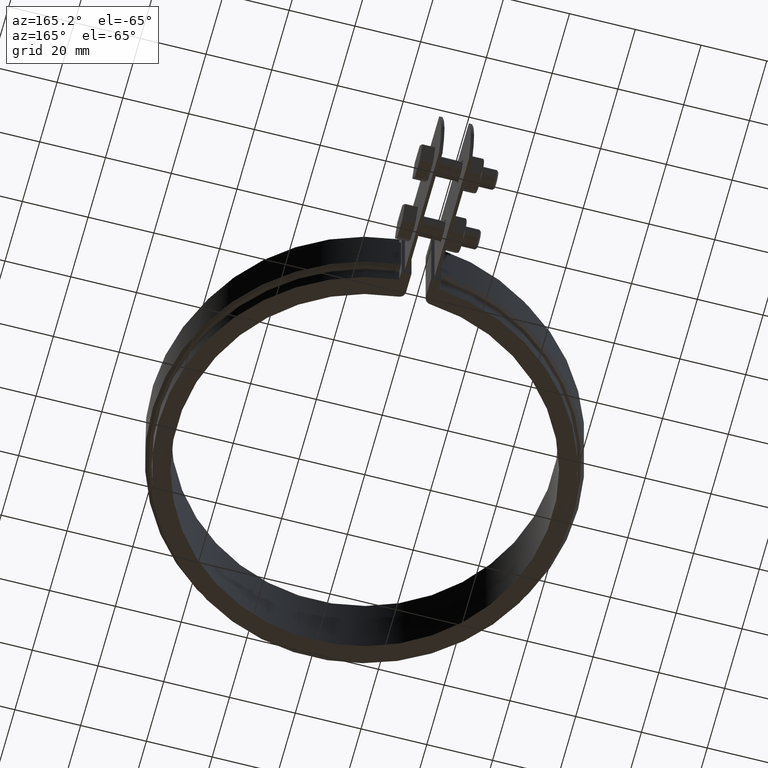
[diagram: clean part render]
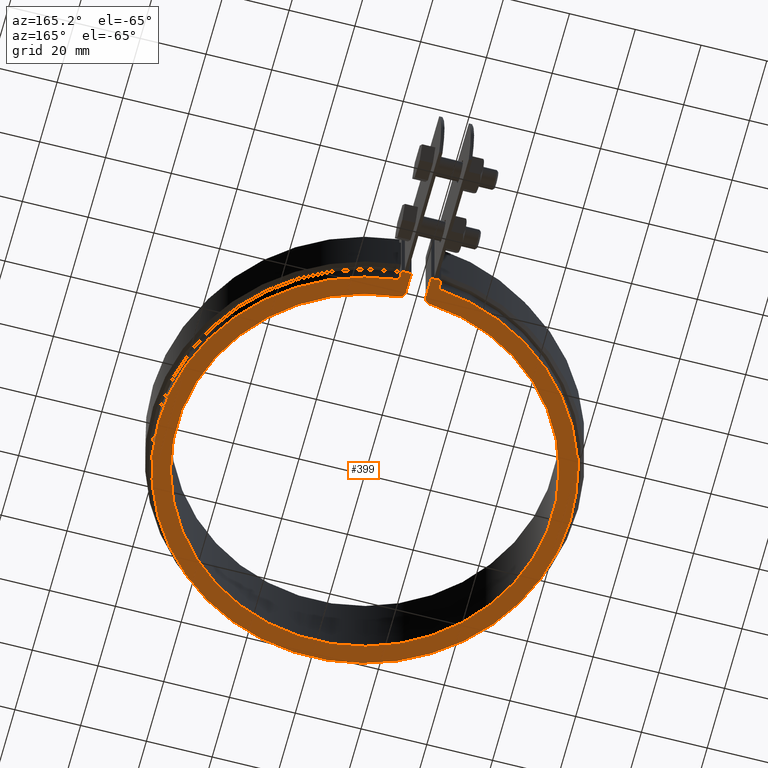
[diagram: same view with one face highlighted and labeled with its STEP entity id]
A machine part, auxiliary view. The second image highlights one B-rep face of the part: STEP entity #399.
In plain terms, the highlighted planar face has unit normal (0, 0, -1).
Its self-contained STEP definition (entity closure, byte-faithful):
#399 = ADVANCED_FACE( '', ( #690 ), #691, .T. );
#690 = FACE_OUTER_BOUND( '', #1542, .T. );
#691 = PLANE( '', #1543 );
#1542 = EDGE_LOOP( '', ( #3064, #3065, #3066, #3067, #3068, #3069, #3070, #3071, #3072, #3073 ) );
#1543 = AXIS2_PLACEMENT_3D( '', #3074, #3075, #3076 );
#3064 = ORIENTED_EDGE( '', *, *, #4115, .F. );
#3065 = ORIENTED_EDGE( '', *, *, #4112, .F. );
#3066 = ORIENTED_EDGE( '', *, *, #4094, .F. );
#3067 = ORIENTED_EDGE( '', *, *, #4069, .F. );
#3068 = ORIENTED_EDGE( '', *, *, #4090, .F. );
#3069 = ORIENTED_EDGE( '', *, *, #4109, .F. );
#3070 = ORIENTED_EDGE( '', *, *, #4116, .F. );
#3071 = ORIENTED_EDGE( '', *, *, #4117, .F. );
#3072 = ORIENTED_EDGE( '', *, *, #4118, .F. );
#3073 = ORIENTED_EDGE( '', *, *, #4015, .F. );
#3074 = CARTESIAN_POINT( '', ( 5.23468562216772, 60.8144995942392, -14.0000000000000 ) );
#3075 = DIRECTION( '', ( 0.000000000000000, 0.000000000000000, -1.00000000000000 ) );
#3076 = DIRECTION( '', ( 0.112630732099760, 0.993636914665851, 0.000000000000000 ) );
#4015 = EDGE_CURVE( '', #4629, #4631, #4632, .T. );
#4069 = EDGE_CURVE( '', #4720, #4691, #4722, .T. );
#4090 = EDGE_CURVE( '', #4755, #4720, #4757, .T. );
#4094 = EDGE_CURVE( '', #4691, #4764, #4765, .T. );
#4109 = EDGE_CURVE( '', #4785, #4755, #4787, .T. );
#4112 = EDGE_CURVE( '', #4764, #4788, #4792, .T. );
#4115 = EDGE_CURVE( '', #4788, #4629, #4796, .T. );
#4116 = EDGE_CURVE( '', #4797, #4785, #4798, .T. );
#4117 = EDGE_CURVE( '', #4799, #4797, #4800, .T. );
#4118 = EDGE_CURVE( '', #4631, #4799, #4801, .T. );
#4629 = VERTEX_POINT( '', #6736 );
#4631 = VERTEX_POINT( '', #6739 );
#4632 = CIRCLE( '', #6740, 2.00000000000000 );
#4691 = VERTEX_POINT( '', #7098 );
#4720 = VERTEX_POINT( '', #7132 );
#4722 = CIRCLE( '', #7135, 62.6500000000000 );
#4755 = VERTEX_POINT( '', #7385 );
#4757 = LINE( '', #7388, #7389 );
#4764 = VERTEX_POINT( '', #7401 );
#4765 = LINE( '', #7402, #7403 );
#4785 = VERTEX_POINT( '', #7447 );
#4787 = LINE( '', #7450, #7451 );
#4788 = VERTEX_POINT( '', #7452 );
#4792 = LINE( '', #7458, #7459 );
#4796 = LINE( '', #7465, #7466 );
#4797 = VERTEX_POINT( '', #7467 );
#4798 = LINE( '', #7468, #7469 );
#4799 = VERTEX_POINT( '', #7470 );
#4800 = CIRCLE( '', #7471, 2.00000000000000 );
#4801 = CIRCLE( '', #7472, 57.1500000000000 );
#6736 = CARTESIAN_POINT( '', ( 3.00000000000000, 58.9382940031352, -14.0000000000000 ) );
#6739 = CARTESIAN_POINT( '', ( 4.83093829247670, 56.9454522785998, -14.0000000000000 ) );
#6740 = AXIS2_PLACEMENT_3D( '', #8247, #8248, #8249 );
#7098 = CARTESIAN_POINT( '', ( 5.99999999999996, 62.3620277091757, -14.0000000000000 ) );
#7132 = CARTESIAN_POINT( '', ( -6.00000000000000, 62.3620277091758, -14.0000000000000 ) );
#7135 = AXIS2_PLACEMENT_3D( '', #8321, #8322, #8323 );
#7385 = CARTESIAN_POINT( '', ( -6.00000000000002, 65.1500000000000, -14.0000000000000 ) );
#7388 = CARTESIAN_POINT( '', ( -6.00000000000000, 65.1500000000000, -14.0000000000000 ) );
#7389 = VECTOR( '', #8337, 1000.00000000000 );
#7401 = CARTESIAN_POINT( '', ( 6.00000000000001, 65.1500000000000, -14.0000000000000 ) );
#7402 = CARTESIAN_POINT( '', ( 6.00000000000001, 62.3620277091758, -14.0000000000000 ) );
#7403 = VECTOR( '', #8340, 1000.00000000000 );
#7447 = CARTESIAN_POINT( '', ( -2.99999999999995, 65.1500000000000, -14.0000000000000 ) );
#7450 = CARTESIAN_POINT( '', ( -5.00000000000001, 65.1500000000000, -14.0000000000000 ) );
#7451 = VECTOR( '', #8352, 1000.00000000000 );
#7452 = CARTESIAN_POINT( '', ( 3.00000000000001, 65.1500000000000, -14.0000000000000 ) );
#7458 = CARTESIAN_POINT( '', ( 6.00000000000001, 65.1500000000000, -14.0000000000000 ) );
#7459 = VECTOR( '', #8355, 1000.00000000000 );
#7465 = CARTESIAN_POINT( '', ( 3.00000000000000, 65.1500000000000, -14.0000000000000 ) );
#7466 = VECTOR( '', #8358, 1000.00000000000 );
#7467 = CARTESIAN_POINT( '', ( -2.99999999999995, 58.9382940031352, -14.0000000000000 ) );
#7468 = CARTESIAN_POINT( '', ( -2.99999999999995, 58.9382940031352, -14.0000000000000 ) );
#7469 = VECTOR( '', #8359, 1000.00000000000 );
#7470 = CARTESIAN_POINT( '', ( -4.83093829247667, 56.9454522785998, -14.0000000000000 ) );
#7471 = AXIS2_PLACEMENT_3D( '', #8360, #8361, #8362 );
#7472 = AXIS2_PLACEMENT_3D( '', #8363, #8364, #8365 );
#8247 = CARTESIAN_POINT( '', ( 5.00000000000000, 58.9382940031352, -14.0000000000000 ) );
#8248 = DIRECTION( '', ( 0.000000000000000, 0.000000000000000, 1.00000000000000 ) );
#8249 = DIRECTION( '', ( -1.00000000000000, -1.22124532708767E-015, 0.000000000000000 ) );
#8321 = CARTESIAN_POINT( '', ( 6.93889390390723E-015, 5.55111512312578E-014, -14.0000000000000 ) );
#8322 = DIRECTION( '', ( 0.000000000000000, 0.000000000000000, 1.00000000000000 ) );
#8323 = DIRECTION( '', ( 1.00000000000000, -1.38777878078145E-017, 0.000000000000000 ) );
#8337 = DIRECTION( '', ( 1.38777878078145E-017, -1.00000000000000, 0.000000000000000 ) );
#8340 = DIRECTION( '', ( -1.38777878078145E-017, 1.00000000000000, 0.000000000000000 ) );
#8352 = DIRECTION( '', ( -1.00000000000000, 9.71445146547012E-017, 0.000000000000000 ) );
#8355 = DIRECTION( '', ( -1.00000000000000, 9.71445146547012E-017, 0.000000000000000 ) );
#8358 = DIRECTION( '', ( -4.16333634234434E-017, -1.00000000000000, 0.000000000000000 ) );
#8359 = DIRECTION( '', ( 4.16333634234434E-017, 1.00000000000000, 0.000000000000000 ) );
#8360 = CARTESIAN_POINT( '', ( -4.99999999999995, 58.9382940031352, -14.0000000000000 ) );
#8361 = DIRECTION( '', ( 0.000000000000000, 0.000000000000000, 1.00000000000000 ) );
#8362 = DIRECTION( '', ( 1.00000000000000, -2.26207941267376E-015, 0.000000000000000 ) );
#8363 = CARTESIAN_POINT( '', ( 0.000000000000000, 0.000000000000000, -14.0000000000000 ) );
#8364 = DIRECTION( '', ( 0.000000000000000, 0.000000000000000, -1.00000000000000 ) );
#8365 = DIRECTION( '', ( 1.00000000000000, -2.77555756156289E-017, 0.000000000000000 ) );